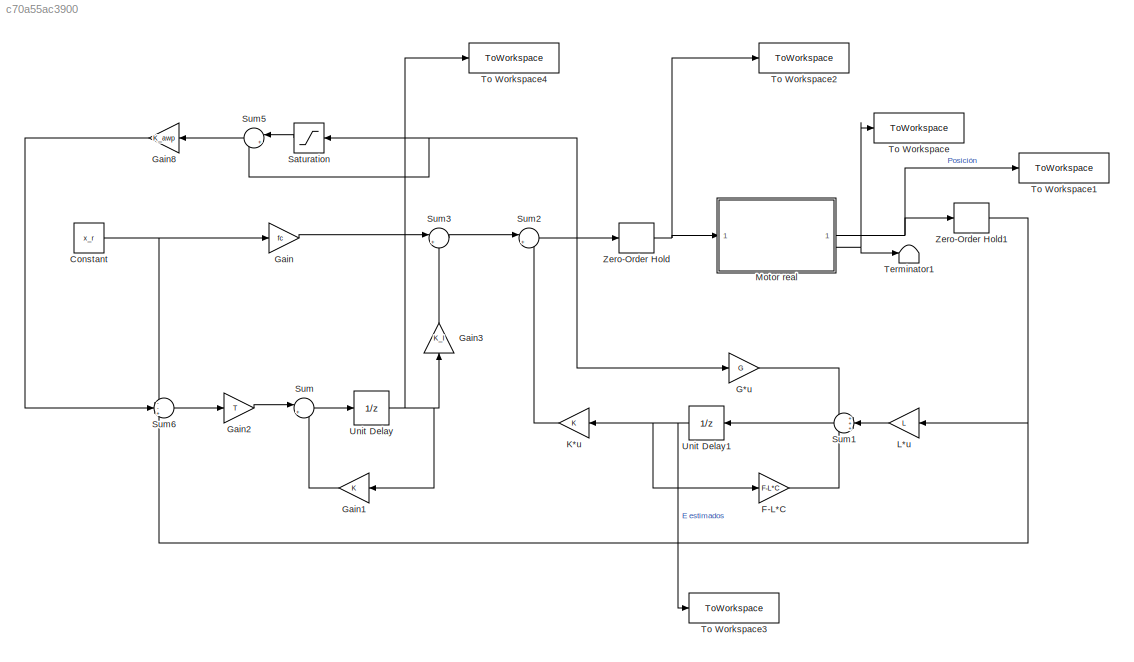
MODEL slx_c70a55ac3900
KIND model
CONFIG AbsTol = auto
CONFIG EnableMultiTasking = off
CONFIG FixedStep = auto
CONFIG MaxStep = auto
CONFIG MinStep = auto
CONFIG RelTol = 1e-3
CONFIG SampleTimeConstraint = Unconstrained
CONFIG SolverName = VariableStepAuto
CONFIG StartTime = 0.0
CONFIG StopTime = 3
BLOCK [Constant] Constant
  Value = x_r
BLOCK [Gain] F-L*C
  Gain = F-L*C
  Multiplication = Matrix(K*u)
BLOCK [Gain] G*u
  Gain = G
  Multiplication = Matrix(K*u)
BLOCK [Gain] Gain
  Gain = fc
BLOCK [Gain] Gain1
BLOCK [Gain] Gain2
  Gain = T
BLOCK [Gain] Gain3
  Gain = K_I
  NameLocation = right
BLOCK [Gain] Gain8
  Gain = K_awp
  NameLocation = top
BLOCK [Gain] K*u
  Gain = K
  Multiplication = Matrix(K*u)
  NameLocation = top
BLOCK [Gain] L*u
  Gain = L
  Multiplication = Matrix(K*u)
  NameLocation = top
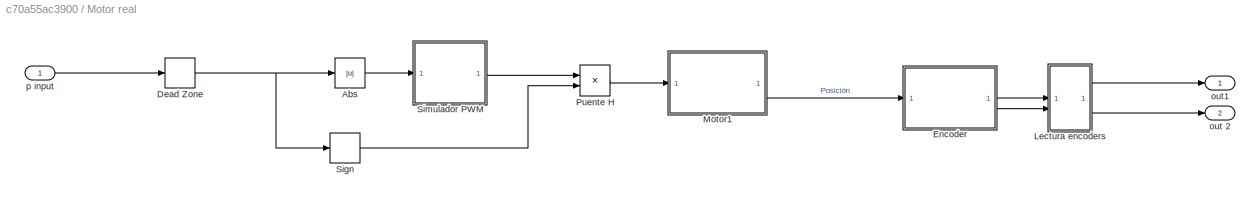
BLOCK [SubSystem] Motor real
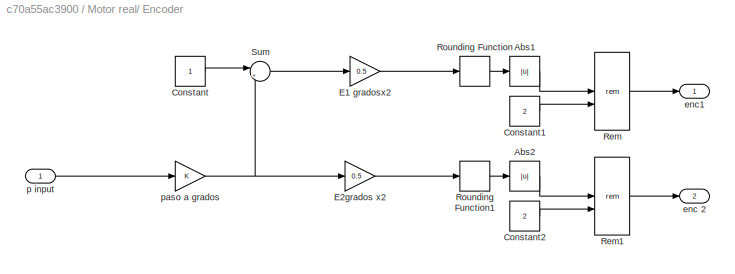
BLOCK [SubSystem] Motor real/ Encoder
BLOCK [Abs] Motor real/ Encoder/Abs1
  SaturateOnIntegerOverflow = off
BLOCK [Abs] Motor real/ Encoder/Abs2
  SaturateOnIntegerOverflow = off
BLOCK [Constant] Motor real/ Encoder/Constant
BLOCK [Constant] Motor real/ Encoder/Constant1
  Value = 2
BLOCK [Constant] Motor real/ Encoder/Constant2
  Value = 2
BLOCK [Gain] Motor real/ Encoder/E1 gradosx2
  Gain = 0.5
BLOCK [Gain] Motor real/ Encoder/E2grados x2
  Gain = 0.5
BLOCK [Math] Motor real/ Encoder/Rem
  Operator = rem
BLOCK [Math] Motor real/ Encoder/Rem1
  Operator = rem
BLOCK [Rounding] Motor real/ Encoder/Rounding Function
BLOCK [Rounding] Motor real/ Encoder/Rounding Function1
BLOCK [Sum] Motor real/ Encoder/Sum
  Inputs = |++
BLOCK [Outport] Motor real/ Encoder/enc 2
  Port = 2
BLOCK [Outport] Motor real/ Encoder/enc1
BLOCK [Inport] Motor real/ Encoder/p input
BLOCK [Gain] Motor real/ Encoder/paso a grados
BLOCK [Abs] Motor real/Abs
  SaturateOnIntegerOverflow = off
BLOCK [DeadZone] Motor real/Dead Zone
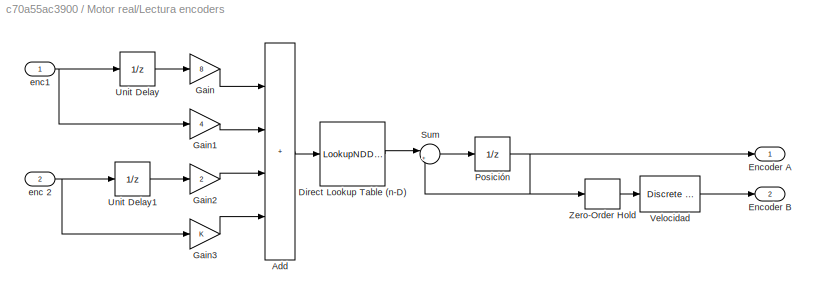
BLOCK [SubSystem] Motor real/Lectura encoders
BLOCK [Sum] Motor real/Lectura encoders/Add
  IconShape = rectangular
  Inputs = ++++
  OutDataTypeStr = double
BLOCK [LookupNDDirect] Motor real/Lectura encoders/Direct Lookup Table (n-D)
  NumberOfTableDimensions = 1
  Table = [0,-1,1,0,1,0,0,-1,-1,0,0,1,0,1,-1,0]
BLOCK [Outport] Motor real/Lectura encoders/Encoder A
BLOCK [Outport] Motor real/Lectura encoders/Encoder B
  Port = 2
BLOCK [Gain] Motor real/Lectura encoders/Gain
  Gain = 8
BLOCK [Gain] Motor real/Lectura encoders/Gain1
  Gain = 4
BLOCK [Gain] Motor real/Lectura encoders/Gain2
  Gain = 2
BLOCK [Gain] Motor real/Lectura encoders/Gain3
BLOCK [UnitDelay] Motor real/Lectura encoders/Posición
  HasFrameUpgradeWarning = on
  SampleTime = -1
BLOCK [Sum] Motor real/Lectura encoders/Sum
  Inputs = |++
BLOCK [UnitDelay] Motor real/Lectura encoders/Unit Delay
  HasFrameUpgradeWarning = on
  SampleTime = -1
BLOCK [UnitDelay] Motor real/Lectura encoders/Unit Delay1
  HasFrameUpgradeWarning = on
  SampleTime = -1
BLOCK [Reference] Motor real/Lectura encoders/Velocidad  REF=simulink/Discrete/Discrete Derivative
  SourceBlock = simulink/Discrete/Discrete Derivative
  SourceType = Discrete Derivative
BLOCK [ZeroOrderHold] Motor real/Lectura encoders/Zero-Order Hold
  SampleTime = 0.0001
BLOCK [Inport] Motor real/Lectura encoders/enc 2
  Port = 2
BLOCK [Inport] Motor real/Lectura encoders/enc1
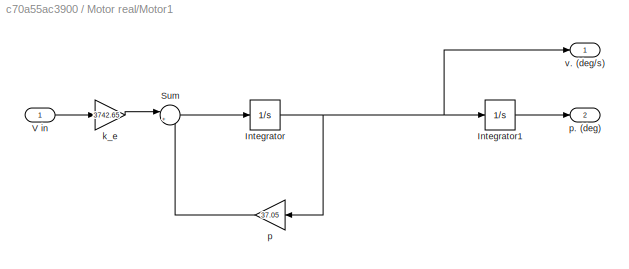
BLOCK [SubSystem] Motor real/Motor1
BLOCK [Integrator] Motor real/Motor1/Integrator
BLOCK [Integrator] Motor real/Motor1/Integrator1
BLOCK [Sum] Motor real/Motor1/Sum
  Inputs = |+-
BLOCK [Inport] Motor real/Motor1/V in
BLOCK [Gain] Motor real/Motor1/k_e
  Gain = 3742.65
BLOCK [Gain] Motor real/Motor1/p
  Gain = 37.05
  NameLocation = top
BLOCK [Outport] Motor real/Motor1/p. (deg)
  Port = 2
BLOCK [Outport] Motor real/Motor1/v. (deg//s)
BLOCK [Product] Motor real/Puente H
BLOCK [Signum] Motor real/Sign
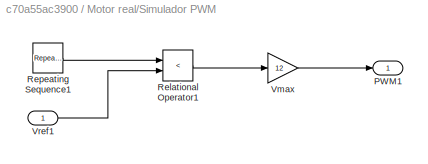
BLOCK [SubSystem] Motor real/Simulador PWM
BLOCK [Outport] Motor real/Simulador PWM/PWM1
BLOCK [RelationalOperator] Motor real/Simulador PWM/Relational Operator1
  InputSameDT = off
  Operator = <
  OutDataTypeStr = boolean
  RndMeth = Simplest
BLOCK [Reference] Motor real/Simulador PWM/Repeating Sequence1  REF=simulink/Sources/Repeating
Sequence
  SourceBlock = simulink/Sources/Repeating\nSequence
  SourceType = Repeating table
BLOCK [Gain] Motor real/Simulador PWM/Vmax
  Gain = 12
BLOCK [Inport] Motor real/Simulador PWM/Vref1
BLOCK [Outport] Motor real/out 2
  Port = 2
BLOCK [Outport] Motor real/out1
BLOCK [Inport] Motor real/p input
BLOCK [Saturate] Saturation
  NameLocation = top
  UpperLimit = 100/12
BLOCK [Sum] Sum
  Inputs = |++
BLOCK [Sum] Sum1
  Inputs = +++
  NameLocation = top
BLOCK [Sum] Sum2
  Inputs = |+-
BLOCK [Sum] Sum3
  Inputs = |+-
BLOCK [Sum] Sum5
  Inputs = |+-
  NameLocation = top
BLOCK [Sum] Sum6
  Inputs = --+
  NameLocation = top
BLOCK [Terminator] Terminator1
BLOCK [ToWorkspace] To Workspace
  FixptAsFi = on
  MaxDataPoints = inf
  SampleTime = -1
  SaveFormat = Timeseries
  VariableName = Velocidad
BLOCK [ToWorkspace] To Workspace1
  FixptAsFi = on
  MaxDataPoints = inf
  SampleTime = -1
  SaveFormat = Timeseries
  VariableName = Posicion
BLOCK [ToWorkspace] To Workspace2
  FixptAsFi = on
  MaxDataPoints = inf
  SampleTime = -1
  SaveFormat = Timeseries
  VariableName = u
BLOCK [ToWorkspace] To Workspace3
  FixptAsFi = on
  MaxDataPoints = inf
  SampleTime = -1
  SaveFormat = Timeseries
  VariableName = estimados
BLOCK [ToWorkspace] To Workspace4
  FixptAsFi = on
  MaxDataPoints = inf
  SampleTime = -1
  SaveFormat = Timeseries
  VariableName = z
BLOCK [UnitDelay] Unit Delay
  HasFrameUpgradeWarning = on
  SampleTime = -1
BLOCK [UnitDelay] Unit Delay1
  HasFrameUpgradeWarning = on
  SampleTime = -1
BLOCK [ZeroOrderHold] Zero-Order Hold
  SampleTime = T
BLOCK [ZeroOrderHold] Zero-Order Hold1
  SampleTime = T
NET Constant:1 -> Gain:1, Sum6:1
LINE F-L*C:1 -> Sum1:3
LINE G*u:1 -> Sum1:1
LINE Gain1:1 -> Sum:2
LINE Gain2:1 -> Sum:1
LINE Gain3:1 -> Sum3:2
LINE Gain8:1 -> Sum6:2
LINE Gain:1 -> Sum3:1
LINE K*u:1 -> Sum2:2
LINE L*u:1 -> Sum1:2
LINE Motor real/ Encoder/Abs1:1 -> Motor real/ Encoder/Rem:1
LINE Motor real/ Encoder/Abs2:1 -> Motor real/ Encoder/Rem1:1
LINE Motor real/ Encoder/Constant1:1 -> Motor real/ Encoder/Rem:2
LINE Motor real/ Encoder/Constant2:1 -> Motor real/ Encoder/Rem1:2
LINE Motor real/ Encoder/Constant:1 -> Motor real/ Encoder/Sum:1
LINE Motor real/ Encoder/E1 gradosx2:1 -> Motor real/ Encoder/Rounding Function:1
LINE Motor real/ Encoder/E2grados x2:1 -> Motor real/ Encoder/Rounding Function1:1
LINE Motor real/ Encoder/Rem1:1 -> Motor real/ Encoder/enc 2:1
LINE Motor real/ Encoder/Rem:1 -> Motor real/ Encoder/enc1:1
LINE Motor real/ Encoder/Rounding Function1:1 -> Motor real/ Encoder/Abs2:1
LINE Motor real/ Encoder/Rounding Function:1 -> Motor real/ Encoder/Abs1:1
LINE Motor real/ Encoder/Sum:1 -> Motor real/ Encoder/E1 gradosx2:1
LINE Motor real/ Encoder/p input:1 -> Motor real/ Encoder/paso a grados:1
NET Motor real/ Encoder/paso a grados:1 -> Motor real/ Encoder/E2grados x2:1, Motor real/ Encoder/Sum:2
LINE Motor real/ Encoder:1 -> Motor real/Lectura encoders:1
LINE Motor real/ Encoder:2 -> Motor real/Lectura encoders:2
LINE Motor real/Abs:1 -> Motor real/Simulador PWM:1
NET Motor real/Dead Zone:1 -> Motor real/Abs:1, Motor real/Sign:1
LINE Motor real/Lectura encoders/Add:1 -> Motor real/Lectura encoders/Direct Lookup Table (n-D):1
LINE Motor real/Lectura encoders/Direct Lookup Table (n-D):1 -> Motor real/Lectura encoders/Sum:1
LINE Motor real/Lectura encoders/Gain1:1 -> Motor real/Lectura encoders/Add:2
LINE Motor real/Lectura encoders/Gain2:1 -> Motor real/Lectura encoders/Add:3
LINE Motor real/Lectura encoders/Gain3:1 -> Motor real/Lectura encoders/Add:4
LINE Motor real/Lectura encoders/Gain:1 -> Motor real/Lectura encoders/Add:1
NET Motor real/Lectura encoders/Posición:1 -> Motor real/Lectura encoders/Encoder A:1, Motor real/Lectura encoders/Sum:2, Motor real/Lectura encoders/Zero-Order Hold:1
LINE Motor real/Lectura encoders/Sum:1 -> Motor real/Lectura encoders/Posición:1
LINE Motor real/Lectura encoders/Unit Delay1:1 -> Motor real/Lectura encoders/Gain2:1
LINE Motor real/Lectura encoders/Unit Delay:1 -> Motor real/Lectura encoders/Gain:1
LINE Motor real/Lectura encoders/Velocidad:1 -> Motor real/Lectura encoders/Encoder B:1
LINE Motor real/Lectura encoders/Zero-Order Hold:1 -> Motor real/Lectura encoders/Velocidad:1
NET Motor real/Lectura encoders/enc 2:1 -> Motor real/Lectura encoders/Gain3:1, Motor real/Lectura encoders/Unit Delay1:1
NET Motor real/Lectura encoders/enc1:1 -> Motor real/Lectura encoders/Gain1:1, Motor real/Lectura encoders/Unit Delay:1
LINE Motor real/Lectura encoders:1 -> Motor real/out1:1
LINE Motor real/Lectura encoders:2 -> Motor real/out 2:1
LINE Motor real/Motor1/Integrator1:1 -> Motor real/Motor1/p. (deg):1
NET Motor real/Motor1/Integrator:1 -> Motor real/Motor1/Integrator1:1, Motor real/Motor1/p:1, Motor real/Motor1/v. (deg//s):1
LINE Motor real/Motor1/Sum:1 -> Motor real/Motor1/Integrator:1
LINE Motor real/Motor1/V in:1 -> Motor real/Motor1/k_e:1
LINE Motor real/Motor1/k_e:1 -> Motor real/Motor1/Sum:1
LINE Motor real/Motor1/p:1 -> Motor real/Motor1/Sum:2
LINE Motor real/Motor1:2 -> Motor real/ Encoder:1
LINE Motor real/Puente H:1 -> Motor real/Motor1:1
LINE Motor real/Sign:1 -> Motor real/Puente H:2
LINE Motor real/Simulador PWM/Relational Operator1:1 -> Motor real/Simulador PWM/Vmax:1
LINE Motor real/Simulador PWM/Repeating Sequence1:1 -> Motor real/Simulador PWM/Relational Operator1:1
LINE Motor real/Simulador PWM/Vmax:1 -> Motor real/Simulador PWM/PWM1:1
LINE Motor real/Simulador PWM/Vref1:1 -> Motor real/Simulador PWM/Relational Operator1:2
LINE Motor real/Simulador PWM:1 -> Motor real/Puente H:1
LINE Motor real/p input:1 -> Motor real/Dead Zone:1
NET Motor real:1 -> To Workspace1:1, Zero-Order Hold1:1
NET Motor real:2 -> Terminator1:1, To Workspace:1
LINE Saturation:1 -> Sum5:1
LINE Sum1:1 -> Unit Delay1:1
NET Sum2:1 -> G*u:1, Saturation:1, Sum5:2, Zero-Order Hold:1
LINE Sum3:1 -> Sum2:1
LINE Sum5:1 -> Gain8:1
LINE Sum6:1 -> Gain2:1
LINE Sum:1 -> Unit Delay:1
NET Unit Delay1:1 -> F-L*C:1, K*u:1, To Workspace3:1
NET Unit Delay:1 -> Gain1:1, Gain3:1, To Workspace4:1
NET Zero-Order Hold1:1 -> L*u:1, Sum6:3
NET Zero-Order Hold:1 -> Motor real:1, To Workspace2:1
note: NET lines group one-source signal fan-out (src -> all destinations, sorted); 1:1 wires keep LINE
